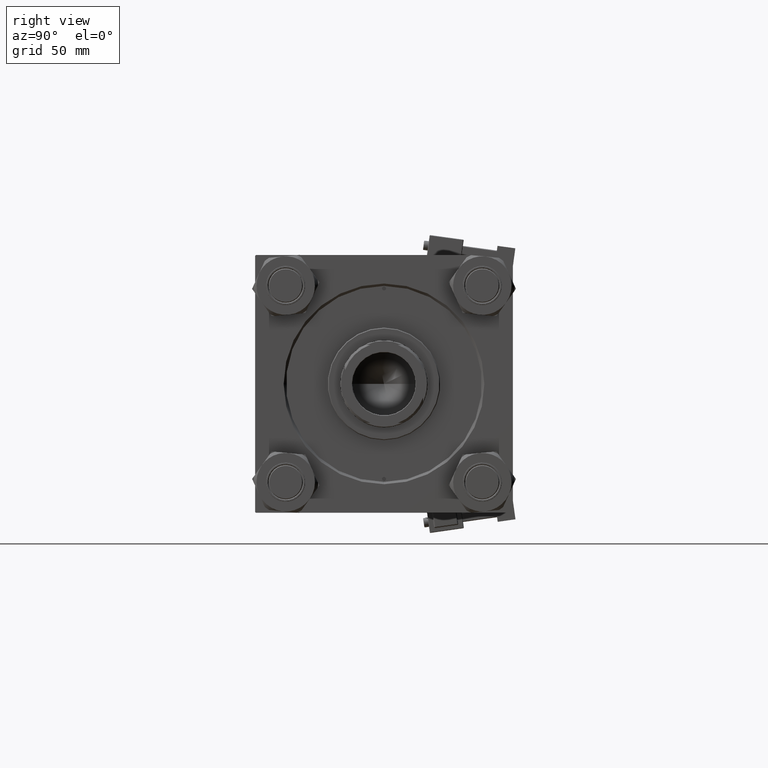
[diagram: clean part render]
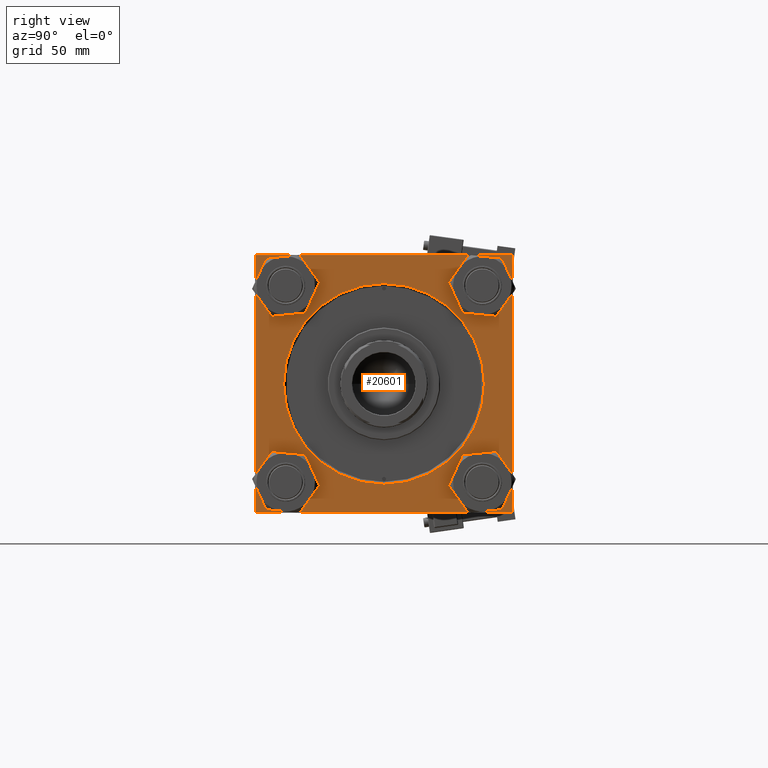
[diagram: same view with one face highlighted and labeled with its STEP entity id]
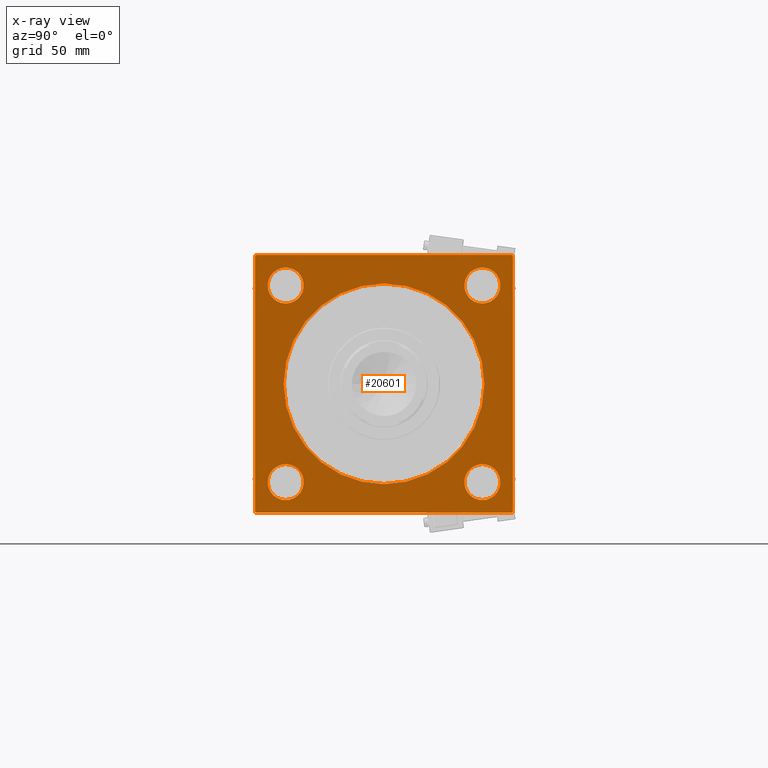
[diagram: x-ray of the same camera — body ghosted, the highlighted face saturated]
A machine part, right view. The second image highlights one B-rep face of the part: STEP entity #20601.
The next image is the same camera in x-ray: the body ghosted, the highlighted face saturated — about 0% of this face is hidden behind the body in this view.
In plain terms, the highlighted planar face has unit normal (-1, 0, 0).
Its self-contained STEP definition (entity closure, byte-faithful):
#142 = CARTESIAN_POINT ( 'NONE',  ( 276.9999999999999432, 62.95000000000000284, 62.95000000000000284 ) ) ;
#176 = FACE_BOUND ( 'NONE', #14857, .T. ) ;
#660 = DIRECTION ( 'NONE',  ( -1.000000000000000000, -0.000000000000000000, 0.000000000000000000 ) ) ;
#727 = ORIENTED_EDGE ( 'NONE', *, *, #21602, .T. ) ;
#743 = DIRECTION ( 'NONE',  ( -1.000000000000000000, -0.000000000000000000, 0.000000000000000000 ) ) ;
#1844 = DIRECTION ( 'NONE',  ( 0.000000000000000000, -1.000000000000000000, 0.000000000000000000 ) ) ;
#2418 = CIRCLE ( 'NONE', #48358, 11.49999999999995381 ) ;
#2486 = AXIS2_PLACEMENT_3D ( 'NONE', #51417, #15757, #19745 ) ;
#2596 = CARTESIAN_POINT ( 'NONE',  ( 276.9999999999999432, 82.50000000000001421, -82.00000000000002842 ) ) ;
#2601 = VERTEX_POINT ( 'NONE', #38183 ) ;
#3630 = DIRECTION ( 'NONE',  ( 0.000000000000000000, 0.7071067811865574537, -0.7071067811865376918 ) ) ;
#3652 = VECTOR ( 'NONE', #1844, 1000.000000000000000 ) ;
#3676 = CARTESIAN_POINT ( 'NONE',  ( 276.9999999999999432, 0.000000000000000000, 0.000000000000000000 ) ) ;
#4191 = VERTEX_POINT ( 'NONE', #46018 ) ;
#4291 = AXIS2_PLACEMENT_3D ( 'NONE', #25904, #42150, #5671 ) ;
#4428 = PLANE ( 'NONE',  #43136 ) ;
#5135 = CARTESIAN_POINT ( 'NONE',  ( 276.9999999999999432, 62.95000000000000284, 74.44999999999996021 ) ) ;
#5278 = CARTESIAN_POINT ( 'NONE',  ( 276.9999999999999432, 62.95000000000000284, -62.95000000000000284 ) ) ;
#5461 = AXIS2_PLACEMENT_3D ( 'NONE', #142, #660, #16403 ) ;
#5529 = EDGE_LOOP ( 'NONE', ( #25230, #36328 ) ) ;
#5551 = DIRECTION ( 'NONE',  ( 0.000000000000000000, -0.7071067811865474617, 0.7071067811865474617 ) ) ;
#5671 = DIRECTION ( 'NONE',  ( 0.000000000000000000, 0.000000000000000000, 1.000000000000000000 ) ) ;
#5768 = VECTOR ( 'NONE', #16238, 1000.000000000000114 ) ;
#5888 = AXIS2_PLACEMENT_3D ( 'NONE', #31660, #47882, #32191 ) ;
#6067 = EDGE_CURVE ( 'NONE', #47842, #25870, #7040, .T. ) ;
#6189 = EDGE_CURVE ( 'NONE', #51515, #6533, #7418, .T. ) ;
#6272 = ORIENTED_EDGE ( 'NONE', *, *, #44276, .T. ) ;
#6533 = VERTEX_POINT ( 'NONE', #2596 ) ;
#6631 = CARTESIAN_POINT ( 'NONE',  ( 276.9999999999999432, -82.49999999999997158, 82.49999999999997158 ) ) ;
#7040 = CIRCLE ( 'NONE', #41069, 11.49999999999995381 ) ;
#7418 = LINE ( 'NONE', #32187, #26574 ) ;
#7774 = ORIENTED_EDGE ( 'NONE', *, *, #30264, .T. ) ;
#8582 = CARTESIAN_POINT ( 'NONE',  ( 276.9999999999999432, 0.000000000000000000, -64.24999999999997158 ) ) ;
#10503 = VERTEX_POINT ( 'NONE', #15698 ) ;
#10591 = LINE ( 'NONE', #34052, #27789 ) ;
#10886 = DIRECTION ( 'NONE',  ( -1.000000000000000000, -0.000000000000000000, 0.000000000000000000 ) ) ;
#10912 = ORIENTED_EDGE ( 'NONE', *, *, #24262, .T. ) ;
#11093 = CARTESIAN_POINT ( 'NONE',  ( 276.9999999999999432, -81.99999999999998579, -82.50000000000002842 ) ) ;
#11272 = LINE ( 'NONE', #31257, #32779 ) ;
#12035 = ORIENTED_EDGE ( 'NONE', *, *, #29377, .T. ) ;
#12163 = FACE_BOUND ( 'NONE', #5529, .T. ) ;
#12164 = EDGE_CURVE ( 'NONE', #4191, #25049, #11272, .T. ) ;
#12511 = CIRCLE ( 'NONE', #39724, 11.49999999999995381 ) ;
#12714 = EDGE_LOOP ( 'NONE', ( #27378, #47524 ) ) ;
#12949 = DIRECTION ( 'NONE',  ( -1.000000000000000000, -0.000000000000000000, 0.000000000000000000 ) ) ;
#13108 = CIRCLE ( 'NONE', #17368, 64.24999999999997158 ) ;
#13278 = DIRECTION ( 'NONE',  ( 0.000000000000000000, 0.000000000000000000, 1.000000000000000000 ) ) ;
#14417 = CIRCLE ( 'NONE', #2486, 64.24999999999997158 ) ;
#14857 = EDGE_LOOP ( 'NONE', ( #14972, #10912 ) ) ;
#14972 = ORIENTED_EDGE ( 'NONE', *, *, #23749, .T. ) ;
#15227 = CARTESIAN_POINT ( 'NONE',  ( 276.9999999999999432, 82.00000000000001421, -82.50000000000002842 ) ) ;
#15698 = CARTESIAN_POINT ( 'NONE',  ( 276.9999999999999432, -82.50000000000000000, -82.00000000000002842 ) ) ;
#15717 = CARTESIAN_POINT ( 'NONE',  ( 276.9999999999999432, 82.50000000000001421, -82.00000000000002842 ) ) ;
#15757 = DIRECTION ( 'NONE',  ( -1.000000000000000000, -0.000000000000000000, 0.000000000000000000 ) ) ;
#16087 = DIRECTION ( 'NONE',  ( -1.000000000000000000, -0.000000000000000000, 0.000000000000000000 ) ) ;
#16099 = CIRCLE ( 'NONE', #5888, 11.49999999999995381 ) ;
#16238 = DIRECTION ( 'NONE',  ( -0.000000000000000000, 0.7071067811865474617, 0.7071067811865474617 ) ) ;
#16403 = DIRECTION ( 'NONE',  ( 0.000000000000000000, 0.000000000000000000, 1.000000000000000000 ) ) ;
#16466 = DIRECTION ( 'NONE',  ( -1.000000000000000000, -0.000000000000000000, 0.000000000000000000 ) ) ;
#16548 = VERTEX_POINT ( 'NONE', #15227 ) ;
#16877 = DIRECTION ( 'NONE',  ( 0.000000000000000000, 0.000000000000000000, 1.000000000000000000 ) ) ;
#17004 = DIRECTION ( 'NONE',  ( 0.000000000000000000, 0.000000000000000000, 1.000000000000000000 ) ) ;
#17368 = AXIS2_PLACEMENT_3D ( 'NONE', #3676, #16466, #36697 ) ;
#17392 = CARTESIAN_POINT ( 'NONE',  ( 276.9999999999999432, -81.99999999999998579, -82.50000000000002842 ) ) ;
#18020 = VERTEX_POINT ( 'NONE', #5135 ) ;
#18076 = VERTEX_POINT ( 'NONE', #17392 ) ;
#19745 = DIRECTION ( 'NONE',  ( 0.000000000000000000, 0.000000000000000000, 1.000000000000000000 ) ) ;
#19777 = CIRCLE ( 'NONE', #43605, 11.49999999999995381 ) ;
#19805 = ORIENTED_EDGE ( 'NONE', *, *, #6189, .F. ) ;
#19850 = VECTOR ( 'NONE', #21851, 1000.000000000000000 ) ;
#20494 = CARTESIAN_POINT ( 'NONE',  ( 276.9999999999999432, 82.50000000000001421, 82.00000000000000000 ) ) ;
#20601 = ADVANCED_FACE ( 'NONE', ( #176, #12163, #33191, #49420, #28419, #40395 ), #4428, .F. ) ;
#21602 = EDGE_CURVE ( 'NONE', #16548, #6533, #36488, .T. ) ;
#21851 = DIRECTION ( 'NONE',  ( 0.000000000000000000, -1.000000000000000000, -1.682156097916904081E-16 ) ) ;
#21994 = VERTEX_POINT ( 'NONE', #36359 ) ;
#22521 = ORIENTED_EDGE ( 'NONE', *, *, #12164, .T. ) ;
#22618 = CARTESIAN_POINT ( 'NONE',  ( 276.9999999999999432, 82.50000000000001421, -82.50000000000002842 ) ) ;
#22721 = ORIENTED_EDGE ( 'NONE', *, *, #43875, .T. ) ;
#23023 = VERTEX_POINT ( 'NONE', #40057 ) ;
#23488 = EDGE_LOOP ( 'NONE', ( #52575, #29890, #32648, #727, #19805, #45332, #48464, #22521 ) ) ;
#23644 = EDGE_CURVE ( 'NONE', #25049, #10503, #28196, .T. ) ;
#23749 = EDGE_CURVE ( 'NONE', #46779, #28933, #29542, .T. ) ;
#23773 = EDGE_CURVE ( 'NONE', #23023, #2601, #12511, .T. ) ;
#23924 = EDGE_CURVE ( 'NONE', #10503, #18076, #40110, .T. ) ;
#24262 = EDGE_CURVE ( 'NONE', #28933, #46779, #2418, .T. ) ;
#25049 = VERTEX_POINT ( 'NONE', #35282 ) ;
#25230 = ORIENTED_EDGE ( 'NONE', *, *, #36375, .T. ) ;
#25680 = VERTEX_POINT ( 'NONE', #38875 ) ;
#25870 = VERTEX_POINT ( 'NONE', #41283 ) ;
#25904 = CARTESIAN_POINT ( 'NONE',  ( 276.9999999999999432, -62.94999999999998153, 62.95000000000001705 ) ) ;
#26574 = VECTOR ( 'NONE', #39371, 1000.000000000000000 ) ;
#26622 = LINE ( 'NONE', #22618, #3652 ) ;
#27378 = ORIENTED_EDGE ( 'NONE', *, *, #6067, .T. ) ;
#27789 = VECTOR ( 'NONE', #5551, 1000.000000000000114 ) ;
#28072 = CARTESIAN_POINT ( 'NONE',  ( 276.9999999999999432, -62.94999999999998153, -62.95000000000001705 ) ) ;
#28196 = LINE ( 'NONE', #6631, #47343 ) ;
#28233 = EDGE_LOOP ( 'NONE', ( #6272, #12035 ) ) ;
#28419 = FACE_BOUND ( 'NONE', #30527, .T. ) ;
#28629 = CARTESIAN_POINT ( 'NONE',  ( 276.9999999999999432, -62.94999999999998153, 51.45000000000006679 ) ) ;
#28933 = VERTEX_POINT ( 'NONE', #33943 ) ;
#29377 = EDGE_CURVE ( 'NONE', #18020, #25680, #16099, .T. ) ;
#29542 = CIRCLE ( 'NONE', #44821, 11.49999999999995381 ) ;
#29890 = ORIENTED_EDGE ( 'NONE', *, *, #23924, .T. ) ;
#30264 = EDGE_CURVE ( 'NONE', #21994, #37159, #14417, .T. ) ;
#30275 = VECTOR ( 'NONE', #3630, 999.9999999999998863 ) ;
#30284 = CARTESIAN_POINT ( 'NONE',  ( 276.9999999999999432, 62.95000000000000284, -62.95000000000000284 ) ) ;
#30527 = EDGE_LOOP ( 'NONE', ( #22721, #7774 ) ) ;
#30957 = CARTESIAN_POINT ( 'NONE',  ( 276.9999999999999432, -62.94999999999998153, -74.44999999999997442 ) ) ;
#31257 = CARTESIAN_POINT ( 'NONE',  ( 276.9999999999999432, -82.49999999999997158, 81.99999999999997158 ) ) ;
#31660 = CARTESIAN_POINT ( 'NONE',  ( 276.9999999999999432, 62.95000000000000284, 62.95000000000000284 ) ) ;
#32187 = CARTESIAN_POINT ( 'NONE',  ( 276.9999999999999432, 82.50000000000001421, 82.50000000000000000 ) ) ;
#32191 = DIRECTION ( 'NONE',  ( 0.000000000000000000, 0.000000000000000000, 1.000000000000000000 ) ) ;
#32648 = ORIENTED_EDGE ( 'NONE', *, *, #40973, .F. ) ;
#32679 = CARTESIAN_POINT ( 'NONE',  ( 276.9999999999999432, 0.000000000000000000, 0.000000000000000000 ) ) ;
#32721 = CARTESIAN_POINT ( 'NONE',  ( 276.9999999999999432, -62.94999999999998153, -62.95000000000001705 ) ) ;
#32779 = VECTOR ( 'NONE', #48529, 999.9999999999998863 ) ;
#32865 = EDGE_CURVE ( 'NONE', #25870, #47842, #50208, .T. ) ;
#33191 = FACE_BOUND ( 'NONE', #28233, .T. ) ;
#33943 = CARTESIAN_POINT ( 'NONE',  ( 276.9999999999999432, -62.94999999999998153, -51.45000000000006679 ) ) ;
#34020 = DIRECTION ( 'NONE',  ( -1.000000000000000000, -0.000000000000000000, 0.000000000000000000 ) ) ;
#34052 = CARTESIAN_POINT ( 'NONE',  ( 276.9999999999999432, 82.00000000000001421, 82.50000000000000000 ) ) ;
#34622 = LINE ( 'NONE', #47376, #19850 ) ;
#35114 = DIRECTION ( 'NONE',  ( 0.000000000000000000, 0.000000000000000000, 1.000000000000000000 ) ) ;
#35282 = CARTESIAN_POINT ( 'NONE',  ( 276.9999999999999432, -82.49999999999997158, 81.99999999999997158 ) ) ;
#36328 = ORIENTED_EDGE ( 'NONE', *, *, #23773, .T. ) ;
#36359 = CARTESIAN_POINT ( 'NONE',  ( 276.9999999999999432, 7.868355684521741158E-15, 64.24999999999997158 ) ) ;
#36375 = EDGE_CURVE ( 'NONE', #2601, #23023, #19777, .T. ) ;
#36488 = LINE ( 'NONE', #15717, #5768 ) ;
#36697 = DIRECTION ( 'NONE',  ( 0.000000000000000000, 0.000000000000000000, 1.000000000000000000 ) ) ;
#37159 = VERTEX_POINT ( 'NONE', #8582 ) ;
#38183 = CARTESIAN_POINT ( 'NONE',  ( 276.9999999999999432, 62.95000000000000284, -74.44999999999996021 ) ) ;
#38844 = CARTESIAN_POINT ( 'NONE',  ( 276.9999999999999432, -62.94999999999998153, 62.95000000000001705 ) ) ;
#38875 = CARTESIAN_POINT ( 'NONE',  ( 276.9999999999999432, 62.95000000000000284, 51.45000000000005258 ) ) ;
#39121 = DIRECTION ( 'NONE',  ( 0.000000000000000000, -1.682156097916903834E-16, -1.000000000000000000 ) ) ;
#39371 = DIRECTION ( 'NONE',  ( 0.000000000000000000, 0.000000000000000000, -1.000000000000000000 ) ) ;
#39724 = AXIS2_PLACEMENT_3D ( 'NONE', #30284, #34020, #45737 ) ;
#40057 = CARTESIAN_POINT ( 'NONE',  ( 276.9999999999999432, 62.95000000000000284, -51.45000000000005258 ) ) ;
#40110 = LINE ( 'NONE', #11093, #30275 ) ;
#40395 = FACE_OUTER_BOUND ( 'NONE', #23488, .T. ) ;
#40973 = EDGE_CURVE ( 'NONE', #16548, #18076, #26622, .T. ) ;
#41069 = AXIS2_PLACEMENT_3D ( 'NONE', #38844, #10886, #35114 ) ;
#41283 = CARTESIAN_POINT ( 'NONE',  ( 276.9999999999999432, -62.94999999999998153, 74.44999999999997442 ) ) ;
#41794 = EDGE_CURVE ( 'NONE', #44645, #4191, #34622, .T. ) ;
#41862 = CARTESIAN_POINT ( 'NONE',  ( 276.9999999999999432, 82.00000000000001421, 82.50000000000000000 ) ) ;
#42150 = DIRECTION ( 'NONE',  ( -1.000000000000000000, -0.000000000000000000, 0.000000000000000000 ) ) ;
#43136 = AXIS2_PLACEMENT_3D ( 'NONE', #32679, #12949, #48903 ) ;
#43605 = AXIS2_PLACEMENT_3D ( 'NONE', #5278, #49482, #13278 ) ;
#43875 = EDGE_CURVE ( 'NONE', #37159, #21994, #13108, .T. ) ;
#44276 = EDGE_CURVE ( 'NONE', #25680, #18020, #52211, .T. ) ;
#44645 = VERTEX_POINT ( 'NONE', #41862 ) ;
#44821 = AXIS2_PLACEMENT_3D ( 'NONE', #32721, #743, #17004 ) ;
#45332 = ORIENTED_EDGE ( 'NONE', *, *, #49181, .T. ) ;
#45737 = DIRECTION ( 'NONE',  ( 0.000000000000000000, 0.000000000000000000, 1.000000000000000000 ) ) ;
#46018 = CARTESIAN_POINT ( 'NONE',  ( 276.9999999999999432, -81.99999999999995737, 82.49999999999997158 ) ) ;
#46779 = VERTEX_POINT ( 'NONE', #30957 ) ;
#47343 = VECTOR ( 'NONE', #39121, 1000.000000000000000 ) ;
#47376 = CARTESIAN_POINT ( 'NONE',  ( 276.9999999999999432, 82.50000000000001421, 82.50000000000000000 ) ) ;
#47524 = ORIENTED_EDGE ( 'NONE', *, *, #32865, .T. ) ;
#47842 = VERTEX_POINT ( 'NONE', #28629 ) ;
#47882 = DIRECTION ( 'NONE',  ( -1.000000000000000000, -0.000000000000000000, 0.000000000000000000 ) ) ;
#48358 = AXIS2_PLACEMENT_3D ( 'NONE', #28072, #16087, #16877 ) ;
#48464 = ORIENTED_EDGE ( 'NONE', *, *, #41794, .T. ) ;
#48529 = DIRECTION ( 'NONE',  ( -0.000000000000000000, -0.7071067811865574537, -0.7071067811865376918 ) ) ;
#48903 = DIRECTION ( 'NONE',  ( 0.000000000000000000, 0.000000000000000000, 1.000000000000000000 ) ) ;
#49181 = EDGE_CURVE ( 'NONE', #51515, #44645, #10591, .T. ) ;
#49420 = FACE_BOUND ( 'NONE', #12714, .T. ) ;
#49482 = DIRECTION ( 'NONE',  ( -1.000000000000000000, -0.000000000000000000, 0.000000000000000000 ) ) ;
#50208 = CIRCLE ( 'NONE', #4291, 11.49999999999995381 ) ;
#51417 = CARTESIAN_POINT ( 'NONE',  ( 276.9999999999999432, 0.000000000000000000, 0.000000000000000000 ) ) ;
#51515 = VERTEX_POINT ( 'NONE', #20494 ) ;
#52211 = CIRCLE ( 'NONE', #5461, 11.49999999999995381 ) ;
#52575 = ORIENTED_EDGE ( 'NONE', *, *, #23644, .T. ) ;